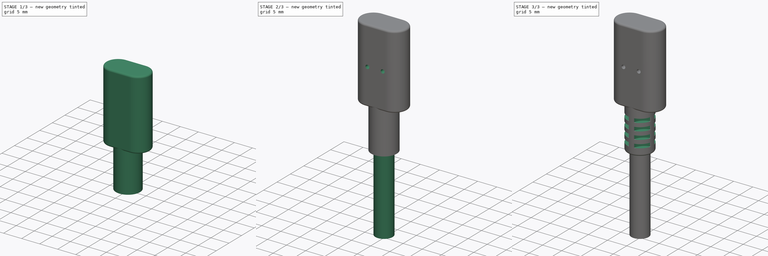
[diagram: build sequence overview — one tinted view per stage of 3, left to right]
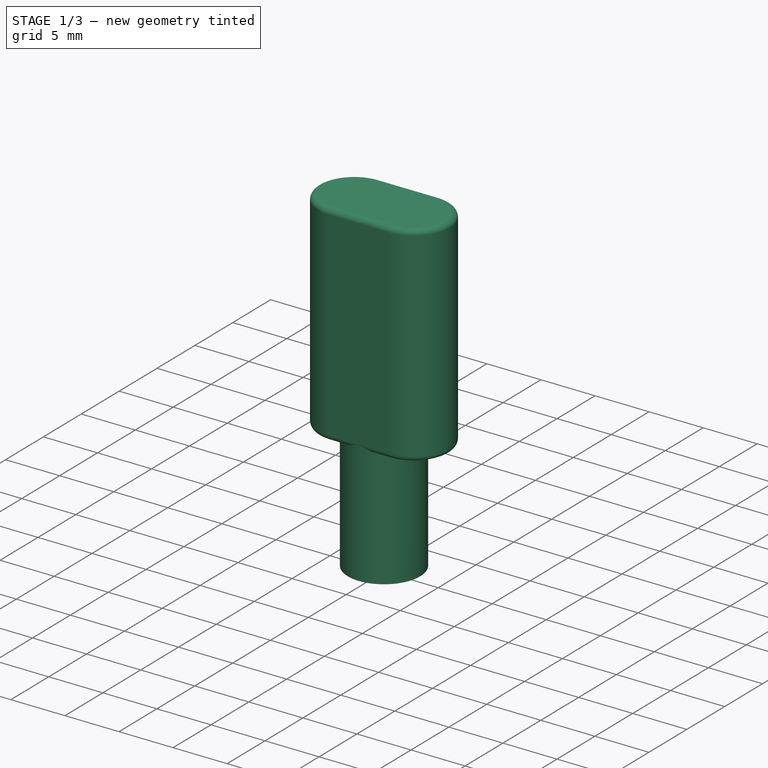
[diagram: stage 1 of 3 — iso view after this stage's code; geometry added in this stage tinted green]
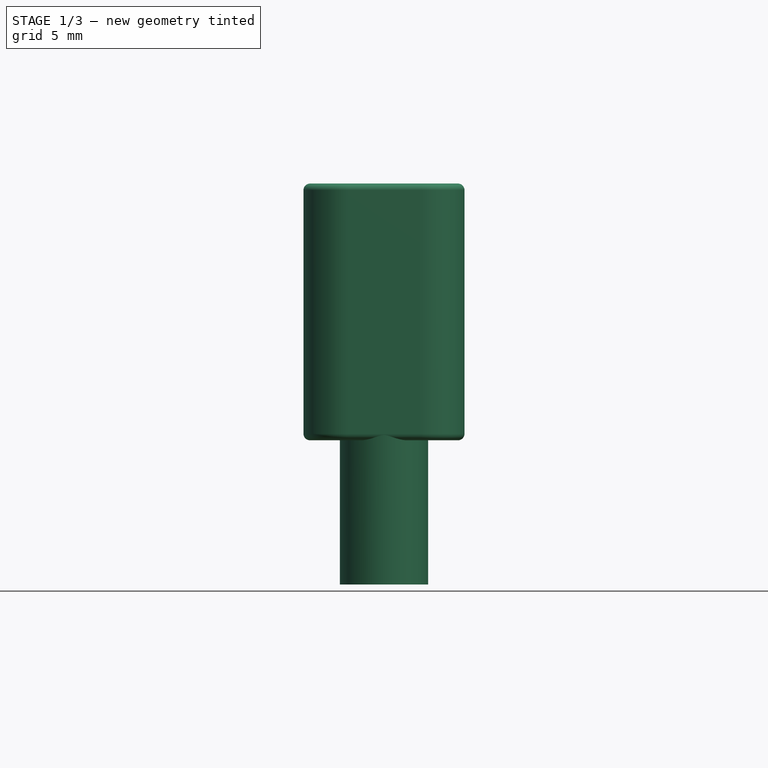
[diagram: stage 1 of 3 — front view after this stage's code; geometry added in this stage tinted green]
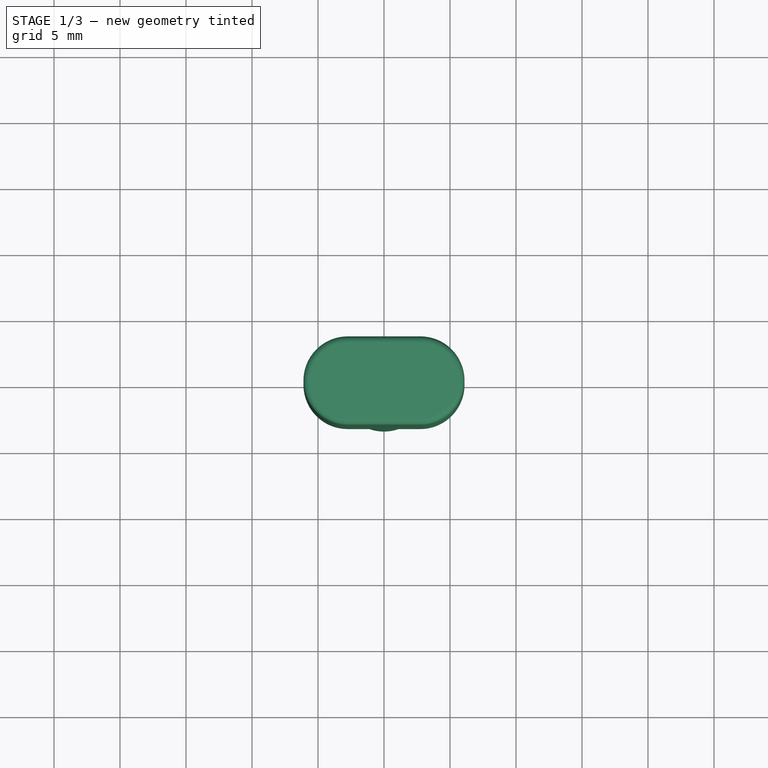
[diagram: stage 1 of 3 — top view after this stage's code; geometry added in this stage tinted green]
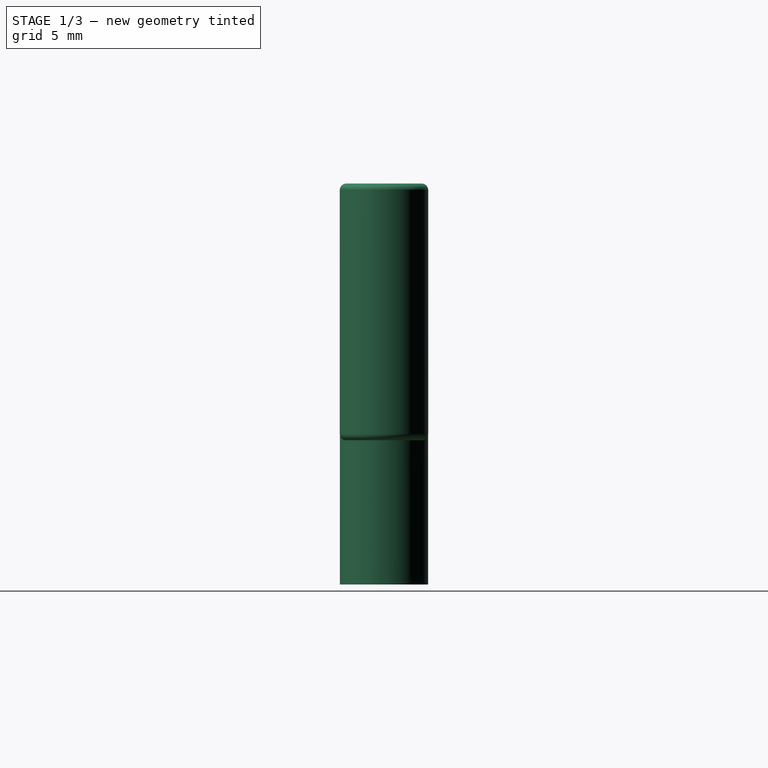
[diagram: stage 1 of 3 — right view after this stage's code; geometry added in this stage tinted green]
FCSTD DOCUMENT  (FreeCAD 0.19R24267 +99 (Git))
Label: USB_C_Connector_Wuerth
License: Creative Commons Attribution-NonCommercial-ShareAlike
LicenseURL: http://creativecommons.org/licenses/by-nc-sa/4.0/
objects: Part::Feature×33, App::Part×5, Sketcher::SketchObject×5, PartDesign::Plane×3, PartDesign::Pad×3, PartDesign::Fillet×2, PartDesign::Pocket×2, PartDesign::CoordinateSystem×2, PartDesign::LinearPattern×1, PartDesign::Body×1
note: 59 computed .brp shape members not serialized (recipe doc carries the construction recipe); baked Part::Feature solids carry a one-line shape summary decoded from their .brp

FEATURE [Part::Feature] Part__Feature  label="632712000112_Shelding"
  shape: bbox 8.543 x 3.737 x 11.66 mm, 85 faces (baked)
FEATURE [Part::Feature] Part__Feature001  label="632712000112_Housing1"
  Placement = pos=(1e-15,-3e-15,-0.02) rot=(0,0,1;0rad)
  shape: bbox 8.291 x 3.729 x 11.09 mm, 630 faces (baked)
FEATURE [Part::Feature] Part__Feature002  label="632712000112_Housing2"
  shape: bbox 6.83 x 0.9 x 4.9 mm, 171 faces (baked)
FEATURE [Part::Feature] Part__Feature003  label="632712000112_Pin"
  Placement = pos=(-2.75,-0.26,0) rot=(0,0,1;3.14159rad)
  shape: bbox 0.2209 x 0.7139 x 9.499 mm, 32 faces (baked)
FEATURE [Part::Feature] Part__Feature004  label="632712000112_Pin001"
  Placement = pos=(-2.25,-0.26,-1e-15) rot=(0,0,1;3.14159rad)
  shape: bbox 0.2209 x 0.7139 x 9.499 mm, 32 faces (baked)
FEATURE [Part::Feature] Part__Feature005  label="632712000112_Pin002"
  Placement = pos=(-1.75,-0.26,-1e-15) rot=(0,0,1;3.14159rad)
  shape: bbox 0.2209 x 0.7139 x 9.499 mm, 32 faces (baked)
FEATURE [Part::Feature] Part__Feature006  label="632712000112_Pin003"
  Placement = pos=(-1.25,-0.26,-1e-15) rot=(0,0,1;3.14159rad)
  shape: bbox 0.2209 x 0.7139 x 9.499 mm, 32 faces (baked)
FEATURE [Part::Feature] Part__Feature007  label="632712000112_Pin004"
  Placement = pos=(-0.75,-0.26,-2e-15) rot=(0,0,1;3.14159rad)
  shape: bbox 0.2209 x 0.7139 x 9.499 mm, 32 faces (baked)
FEATURE [Part::Feature] Part__Feature008  label="632712000112_Pin005"
  Placement = pos=(-0.25,-0.26,-2e-15) rot=(0,0,1;3.14159rad)
  shape: bbox 0.2209 x 0.7139 x 9.499 mm, 32 faces (baked)
FEATURE [Part::Feature] Part__Feature009  label="632712000112_Pin006"
  Placement = pos=(0.25,-0.26,-2e-15) rot=(0,0,1;3.14159rad)
  shape: bbox 0.2209 x 0.7139 x 9.499 mm, 32 faces (baked)
FEATURE [Part::Feature] Part__Feature010  label="632712000112_Pin007"
  Placement = pos=(0.75,-0.26,-2e-15) rot=(0,0,1;3.14159rad)
  shape: bbox 0.2209 x 0.7139 x 9.499 mm, 32 faces (baked)
FEATURE [Part::Feature] Part__Feature011  label="632712000112_Pin008"
  Placement = pos=(1.25,-0.26,-3e-15) rot=(0,0,1;3.14159rad)
  shape: bbox 0.2209 x 0.7139 x 9.499 mm, 32 faces (baked)
FEATURE [Part::Feature] Part__Feature012  label="632712000112_Pin009"
  Placement = pos=(1.75,-0.26,-3e-15) rot=(0,0,1;3.14159rad)
  shape: bbox 0.2209 x 0.7139 x 9.499 mm, 32 faces (baked)
FEATURE [Part::Feature] Part__Feature013  label="632712000112_Pin010"
  Placement = pos=(2.25,-0.26,-3e-15) rot=(0,0,1;3.14159rad)
  shape: bbox 0.2209 x 0.7139 x 9.499 mm, 32 faces (baked)
FEATURE [Part::Feature] Part__Feature014  label="632712000112_Pin011"
  Placement = pos=(2.75,-0.26,-4e-15) rot=(0,0,1;3.14159rad)
  shape: bbox 0.2209 x 0.7139 x 9.499 mm, 32 faces (baked)
FEATURE [App::Part] SE_Shelding_Pin  label="SE Shelding Pin"
  Group = -> [Part__Feature002,Part__Feature003,Part__Feature004,Part__Feature005,Part__Feature006,Part__Feature007,Part__Feature008,Part__Feature009,Part__Feature010,Part__Feature011,Part__Feature012,Part__Feature013,Part__Feature014]
  Origin = -> Origin
  Placement = pos=(-8.37e-14,-0.2,-7.98) rot=(0,0,1;0rad)
FEATURE [Part::Feature] Part__Feature015  label="632712000112_Shelding2.asm"
  Placement = pos=(1e-15,-1.03,-5.2) rot=(0,0,1;3.14159rad)
  shape: bbox 6.32 x 1.17 x 9.76 mm, 166 faces (baked)
FEATURE [Part::Feature] Part__Feature016  label="632712000112_Shelding3.asm"
  Placement = pos=(0,-0.2,-7.2289) rot=(0,0,1;0rad)
  shape: bbox 7.6 x 1.69 x 9.87 mm, 88 faces (baked)
FEATURE [Part::Feature] Part__Feature017  label="632712000112_Shelding2.asm001"
  Placement = pos=(0,1.03,-5.2) rot=(0,0,1;0rad)
  shape: bbox 6.32 x 1.17 x 9.76 mm, 166 faces (baked)
FEATURE [Part::Feature] Part__Feature018  label="632712000112_Housing003"
  shape: bbox 6.83 x 0.9 x 4.9 mm, 171 faces (baked)
FEATURE [Part::Feature] Part__Feature019  label="632712000112_Pin012"
  Placement = pos=(-2.75,-0.26,0) rot=(0,0,1;3.14159rad)
  shape: bbox 0.2209 x 0.7139 x 9.499 mm, 32 faces (baked)
FEATURE [Part::Feature] Part__Feature020  label="632712000112_Pin013"
  Placement = pos=(-2.25,-0.26,-1e-15) rot=(0,0,1;3.14159rad)
  shape: bbox 0.2209 x 0.7139 x 9.499 mm, 32 faces (baked)
FEATURE [Part::Feature] Part__Feature021  label="632712000112_Pin014"
  Placement = pos=(-1.75,-0.26,-1e-15) rot=(0,0,1;3.14159rad)
  shape: bbox 0.2209 x 0.7139 x 9.499 mm, 32 faces (baked)
FEATURE [Part::Feature] Part__Feature022  label="632712000112_Pin015"
  Placement = pos=(-1.25,-0.26,-1e-15) rot=(0,0,1;3.14159rad)
  shape: bbox 0.2209 x 0.7139 x 9.499 mm, 32 faces (baked)
FEATURE [Part::Feature] Part__Feature023  label="632712000112_Pin016"
  Placement = pos=(-0.75,-0.26,-2e-15) rot=(0,0,1;3.14159rad)
  shape: bbox 0.2209 x 0.7139 x 9.499 mm, 32 faces (baked)
FEATURE [Part::Feature] Part__Feature024  label="632712000112_Pin017"
  Placement = pos=(-0.25,-0.26,-2e-15) rot=(0,0,1;3.14159rad)
  shape: bbox 0.2209 x 0.7139 x 9.499 mm, 32 faces (baked)
FEATURE [Part::Feature] Part__Feature025  label="632712000112_Pin018"
  Placement = pos=(0.25,-0.26,-2e-15) rot=(0,0,1;3.14159rad)
  shape: bbox 0.2209 x 0.7139 x 9.499 mm, 32 faces (baked)
FEATURE [Part::Feature] Part__Feature026  label="632712000112_Pin019"
  Placement = pos=(0.75,-0.26,-2e-15) rot=(0,0,1;3.14159rad)
  shape: bbox 0.2209 x 0.7139 x 9.499 mm, 32 faces (baked)
FEATURE [Part::Feature] Part__Feature027  label="632712000112_Pin020"
  Placement = pos=(1.25,-0.26,-3e-15) rot=(0,0,1;3.14159rad)
  shape: bbox 0.2209 x 0.7139 x 9.499 mm, 32 faces (baked)
FEATURE [Part::Feature] Part__Feature028  label="632712000112_Pin021"
  Placement = pos=(1.75,-0.26,-3e-15) rot=(0,0,1;3.14159rad)
  shape: bbox 0.2209 x 0.7139 x 9.499 mm, 32 faces (baked)
FEATURE [Part::Feature] Part__Feature029  label="632712000112_Pin022"
  Placement = pos=(2.25,-0.26,-3e-15) rot=(0,0,1;3.14159rad)
  shape: bbox 0.2209 x 0.7139 x 9.499 mm, 32 faces (baked)
FEATURE [Part::Feature] Part__Feature030  label="632712000112_Pin023"
  Placement = pos=(2.75,-0.26,-4e-15) rot=(0,0,1;3.14159rad)
  shape: bbox 0.2209 x 0.7139 x 9.499 mm, 32 faces (baked)
FEATURE [App::Part] SE_Shelding_Pin001  label="SE Shelding Pin001"
  Group = -> [Part__Feature018,Part__Feature019,Part__Feature020,Part__Feature021,Part__Feature022,Part__Feature023,Part__Feature024,Part__Feature025,Part__Feature026,Part__Feature027,Part__Feature028,Part__Feature029,Part__Feature030]
  Origin = -> Origin001
  Placement = pos=(-8.04e-14,0.2,-7.98) rot=(0,0,1;3.14159rad)
FEATURE [Part::Feature] Part__Feature031  label="632712000112_Mylar"
  Placement = pos=(0,-0.98,-2.44) rot=(0,0.707107,-0.707107;3.14159rad)
  shape: bbox 5.95 x 0.05 x 1.6 mm, 6 faces (baked)
FEATURE [Part::Feature] Part__Feature032  label="632712000112_Mylar001"
  Placement = pos=(0,0.98,-2.49) rot=(0,0.707107,0.707107;3.14159rad)
  shape: bbox 5.95 x 0.05 x 1.6 mm, 6 faces (baked)
FEATURE [App::Part] _32712000112  label="Plug"
  Group = -> [Part__Feature,Part__Feature001,SE_Shelding_Pin,Part__Feature015,Part__Feature016,Part__Feature017,SE_Shelding_Pin001,Part__Feature031,Part__Feature032]
  Origin = -> Origin002
FEATURE [PartDesign::Plane] DatumPlane
  AttachmentOffset = pos=(0,0,-6.65) rot=(0,0,1;0rad)
  Length = 60
  MapMode = 5
  Placement = pos=(0,0,-6.65) rot=(0,0,1;0rad)
  ResizeMode = 0
  Support = -> [XY_Plane004]
  Width = 60
FEATURE [Sketcher::SketchObject] Sketch
  FullyConstrained = true
  MapMode = 5
  Placement = pos=(0,0,-6.65) rot=(0,0,1;0rad)
  Support = -> [DatumPlane]
  sketch-geometry (6):
    g0: ArcOfCircle CenterX=-2.75 CenterY=0 CenterZ=0 NormalX=0 NormalY=0 NormalZ=1 AngleXU=0 Radius=3.35 StartAngle=1.5708 EndAngle=4.71239
    g1: ArcOfCircle CenterX=2.75 CenterY=0 CenterZ=0 NormalX=0 NormalY=0 NormalZ=1 AngleXU=0 Radius=3.35 StartAngle=4.71239 EndAngle=7.85398
    g2: LineSegment StartX=-2.75 StartY=-3.35 StartZ=0 EndX=2.75 EndY=-3.35 EndZ=0
    g3: LineSegment StartX=-2.75 StartY=3.35 StartZ=0 EndX=2.75 EndY=3.35 EndZ=0
    g4: GeomPoint X=-6.1 Y=0 Z=0
    g5: GeomPoint X=6.1 Y=0 Z=0
  constraints (13):
    c: Tangent(g0,g3) = 1.5708
    c: Tangent(g0,g2) = -1.5708
    c: Tangent(g2,g1) = -1.5708
    c: Tangent(g3,g1) = 1.5708
    c: Horizontal(g2)
    c: PointOnObject(g0,g-1)
    c: DistanceY(g0,g0) = 6.7
    c: PointOnObject(g4,g0)
    c: PointOnObject(g5,g1)
    c: PointOnObject(g5,g-1)
    c: PointOnObject(g4,g-1)
    c: DistanceX(g4,g5) = 12.2
    c: Symmetric(g0,g1,g-2)
FEATURE [PartDesign::Pad] Pad
  Direction = (1,1,1)
  Length = 19.45
  Length2 = 100
  Placement = pos=(0,0,-6.65) rot=(0,0,1;0rad)
  Profile = -> Sketch
  Refine = true
  Reversed = true
  Type = 0
FEATURE [PartDesign::Fillet] Fillet
  Base = -> Pad [Edge10,Edge9]
  BaseFeature = -> Pad
  Placement = pos=(0,0,-6.65) rot=(0,0,1;0rad)
  Radius = 0.5
  Refine = true
  SupportTransform = false
FEATURE [PartDesign::Plane] DatumPlane001
  AttachmentOffset = pos=(0,0,-19.45) rot=(0,0,1;0rad)
  Length = 60
  MapMode = 5
  Placement = pos=(0,0,-26.1) rot=(0,0,1;0rad)
  ResizeMode = 0
  Support = -> [DatumPlane]
  Width = 60
FEATURE [Sketcher::SketchObject] Sketch001
  AttachmentOffset = pos=(0,0,2) rot=(0,0,1;0rad)
  FullyConstrained = true
  MapMode = 5
  Placement = pos=(0,0,-24.1) rot=(0,0,1;0rad)
  Support = -> [DatumPlane001]
  sketch-geometry (1):
    g0: Circle CenterX=0 CenterY=0 CenterZ=0 NormalX=0 NormalY=0 NormalZ=1 AngleXU=0 Radius=3.34
  constraints (2):
    c: Coincident(g0,g-1)
    c: Radius(g0) = 3.34
FEATURE [PartDesign::Plane] DatumPlane002
  AttachmentOffset = pos=(0,0,-30.37) rot=(0,0,1;0rad)
  Length = 60
  MapMode = 5
  Placement = pos=(0,0,-37.02) rot=(0,0,1;0rad)
  ResizeMode = 0
  Support = -> [DatumPlane]
  Width = 60
FEATURE [PartDesign::Pad] Pad001
  BaseFeature = -> Fillet
  Direction = (1,1,1)
  Length = 10
  Length2 = 100
  Placement = pos=(0,0,-6.65) rot=(0,0,1;0rad)
  Profile = -> Sketch001
  Refine = true
  Type = 3
  UpToFace = -> DatumPlane002
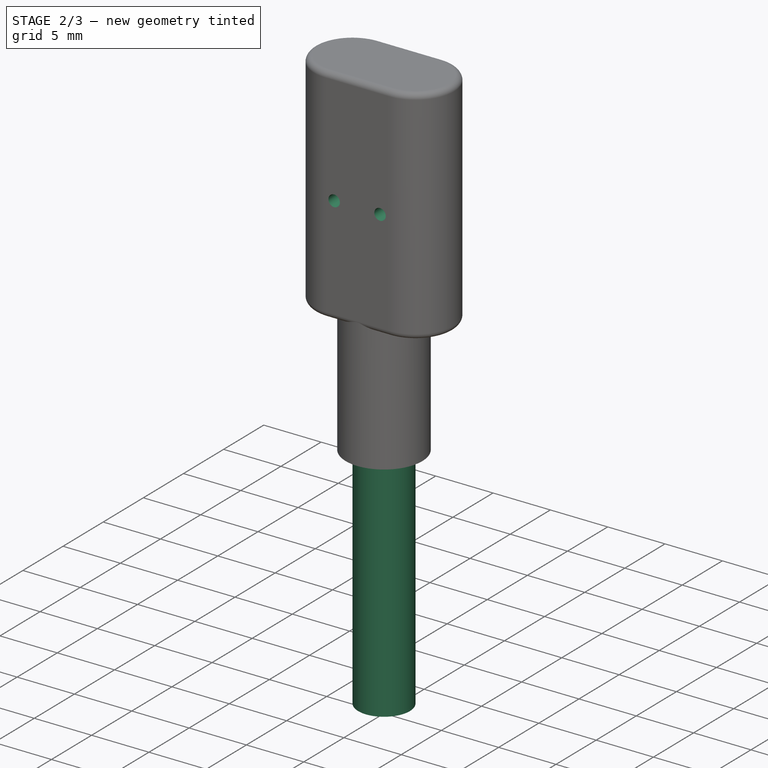
[diagram: stage 2 of 3 — iso view after this stage's code; geometry added in this stage tinted green]
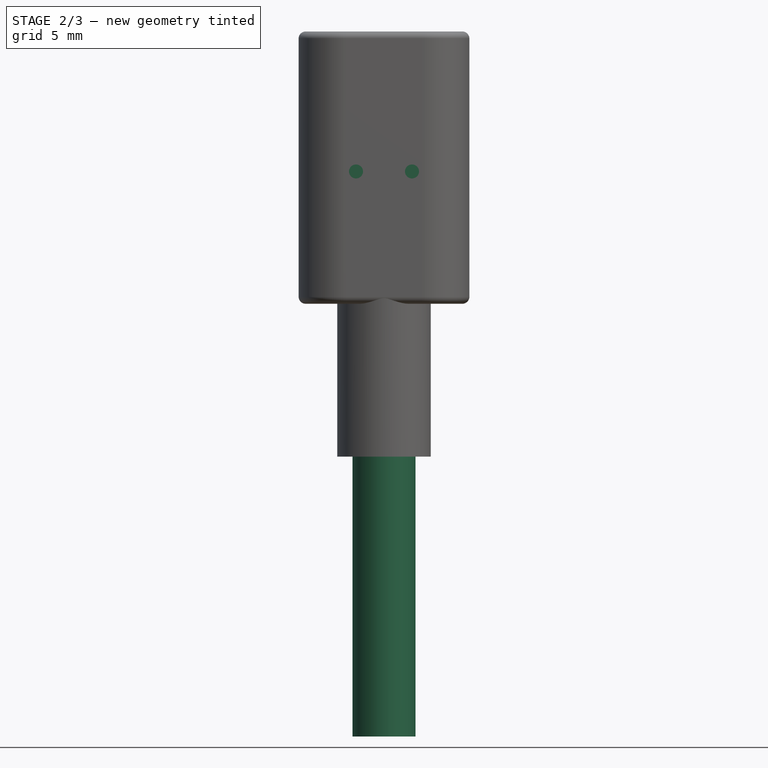
[diagram: stage 2 of 3 — front view after this stage's code; geometry added in this stage tinted green]
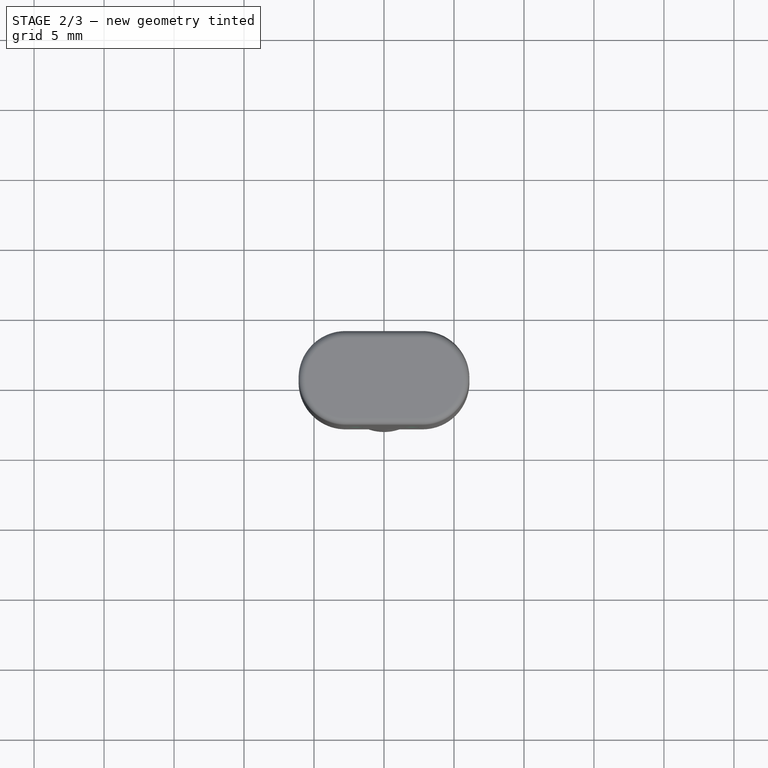
[diagram: stage 2 of 3 — top view after this stage's code; geometry added in this stage tinted green]
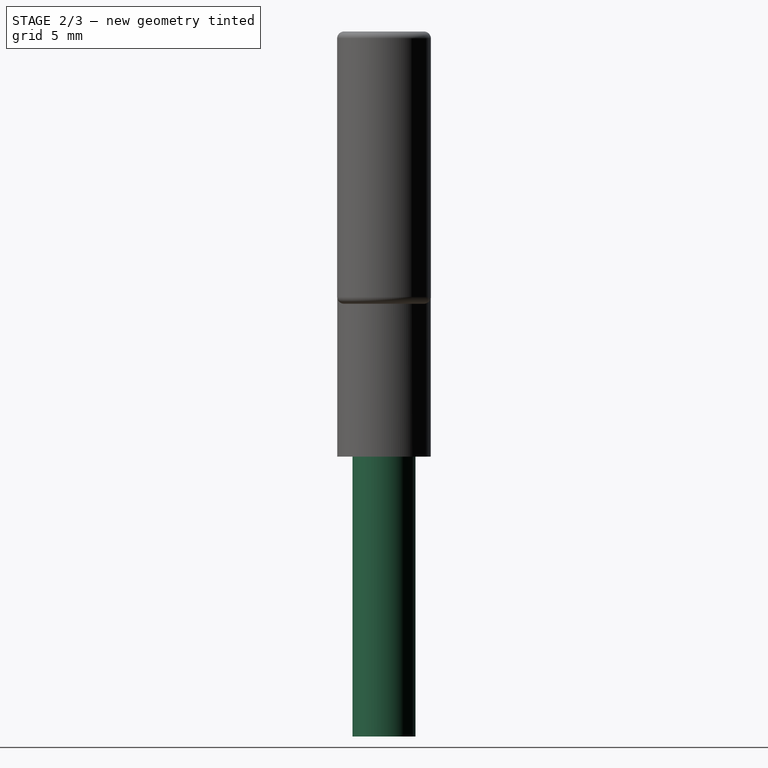
[diagram: stage 2 of 3 — right view after this stage's code; geometry added in this stage tinted green]
FEATURE [Sketcher::SketchObject] Sketch002
  FullyConstrained = true
  MapMode = 5
  Placement = pos=(0,0,-37.02) rot=(0,0,1;0rad)
  Support = -> [DatumPlane002]
  sketch-geometry (1):
    g0: Circle CenterX=0 CenterY=0 CenterZ=0 NormalX=0 NormalY=0 NormalZ=1 AngleXU=0 Radius=2.25
  constraints (2):
    c: Coincident(g0,g-1)
    c: Radius(g0) = 2.25
FEATURE [PartDesign::Pad] Pad002
  BaseFeature = -> Pad001
  Direction = (1,1,1)
  Length = 20
  Length2 = 100
  Placement = pos=(0,0,-6.65) rot=(0,0,1;0rad)
  Profile = -> Sketch002
  Refine = true
  Reversed = true
  Type = 0
FEATURE [Sketcher::SketchObject] Sketch003
  FullyConstrained = true
  MapMode = 5
  Placement = pos=(0,-3.35,-6.65) rot=(1,0,0;1.5708rad)
  Support = -> [Pad002]
  sketch-geometry (2):
    g0: Circle CenterX=2 CenterY=-10 CenterZ=0 NormalX=0 NormalY=0 NormalZ=1 AngleXU=0 Radius=0.5
    g1: Circle CenterX=-2 CenterY=-10 CenterZ=0 NormalX=0 NormalY=0 NormalZ=1 AngleXU=0 Radius=0.5
  constraints (5):
    c: Symmetric(g1,g0,g-2)
    c: Equal(g1,g0)
    c: Radius(g0) = 0.5
    c: DistanceY(g-1,g0) = -10
    c: DistanceX(g1,g0) = 4
FEATURE [PartDesign::Pocket] Pocket
  BaseFeature = -> Pad002
  Length = 3
  Length2 = 100
  Placement = pos=(0,0,-6.65) rot=(0,0,1;0rad)
  Profile = -> Sketch003
  Refine = true
  Type = 0
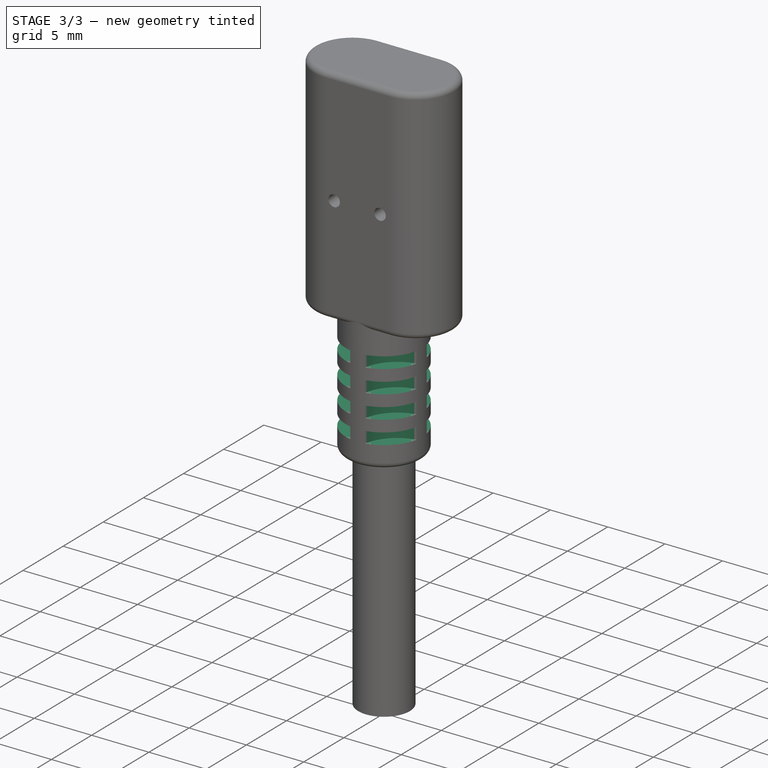
[diagram: stage 3 of 3 — iso view after this stage's code; geometry added in this stage tinted green]
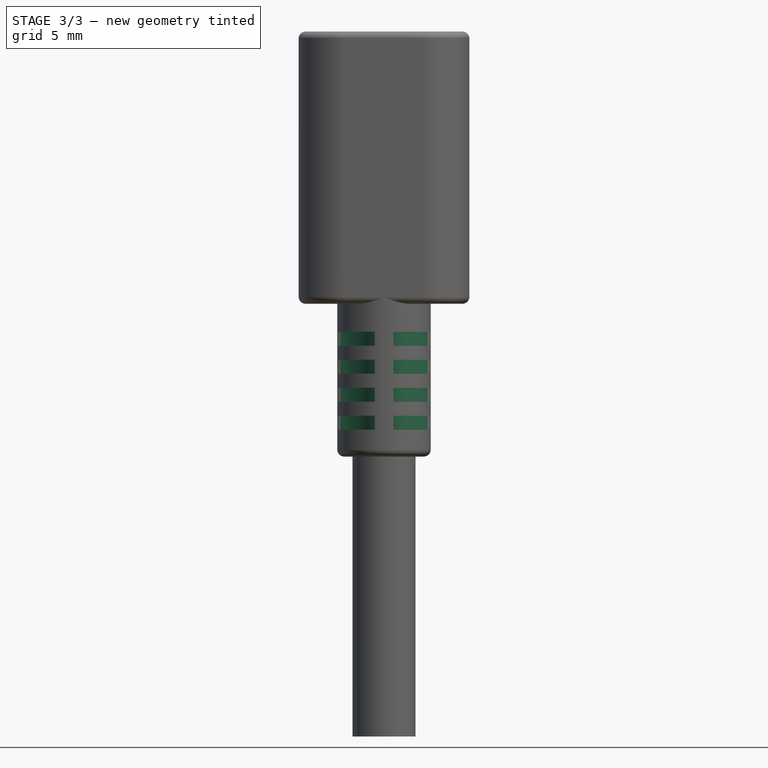
[diagram: stage 3 of 3 — front view after this stage's code; geometry added in this stage tinted green]
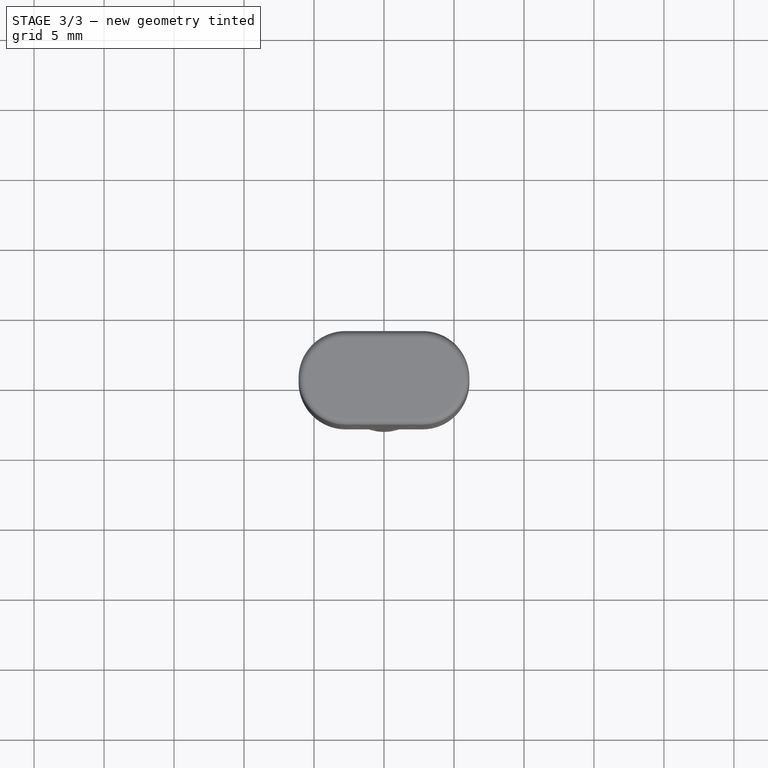
[diagram: stage 3 of 3 — top view after this stage's code; geometry added in this stage tinted green]
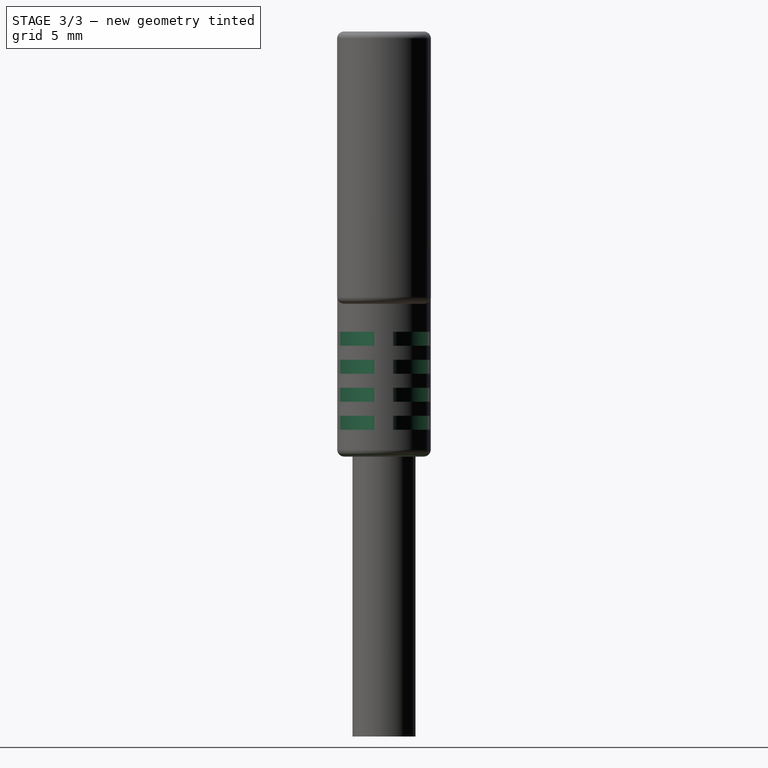
[diagram: stage 3 of 3 — right view after this stage's code; geometry added in this stage tinted green]
FEATURE [PartDesign::Fillet] Fillet001
  Base = -> Pocket [Edge42]
  BaseFeature = -> Pocket
  Placement = pos=(0,0,-6.65) rot=(0,0,1;0rad)
  Radius = 0.5
  Refine = true
  SupportTransform = false
FEATURE [Sketcher::SketchObject] Sketch004
  AttachmentOffset = pos=(0,0,-2) rot=(0,0,1;0rad)
  FullyConstrained = true
  MapMode = 5
  Placement = pos=(0,0,-28.1) rot=(0,0,1;0rad)
  Support = -> [DatumPlane001]
  sketch-geometry (5):
    g0: Circle CenterX=3.88909 CenterY=3.88909 CenterZ=0 NormalX=0 NormalY=0 NormalZ=1 AngleXU=0 Radius=3.3
    g1: LineSegment StartX=0 StartY=0 StartZ=0 EndX=3.88909 EndY=3.88909 EndZ=0
    g2: Circle CenterX=3.88909 CenterY=-3.88909 CenterZ=0 NormalX=0 NormalY=0 NormalZ=1 AngleXU=0 Radius=3.3
    g3: Circle CenterX=-3.88909 CenterY=-3.88909 CenterZ=0 NormalX=0 NormalY=0 NormalZ=1 AngleXU=0 Radius=3.3
    g4: Circle CenterX=-3.88909 CenterY=3.88909 CenterZ=0 NormalX=0 NormalY=0 NormalZ=1 AngleXU=0 Radius=3.3
  constraints (11):
    c: Radius(g0) = 3.3
    c: Coincident(g1,g-1)
    c: Coincident(g1,g0)
    c: Angle(g-1,g1) = 0.785398
    c: Distance(g1) = 5.5
    c: Equal(g0,g4)
    c: Equal(g4,g3)
    c: Equal(g3,g2)
    c: Symmetric(g3,g0,g-1)
    c: Symmetric(g0,g2,g-1)
    c: Symmetric(g4,g0,g-2)
FEATURE [PartDesign::Pocket] Pocket001
  BaseFeature = -> Fillet001
  Length = 1
  Length2 = 100
  Placement = pos=(0,0,-6.65) rot=(0,0,1;0rad)
  Profile = -> Sketch004
  Refine = true
  Type = 0
FEATURE [PartDesign::LinearPattern] LinearPattern
  BaseFeature = -> Pocket001
  Direction = -> Z_Axis004
  Length = 6
  Occurrences = 4
  Originals = -> [Pocket001]
  Placement = pos=(0,0,-6.65) rot=(0,0,1;0rad)
  Refine = true
  Reversed = true
FEATURE [PartDesign::Body] Body
  Group = -> [DatumPlane,DatumPlane001,Sketch,Pad,Fillet,Sketch001,DatumPlane002,Pad001,Sketch002,Pad002,Sketch003,Pocket,Fillet001,Sketch004,Pocket001,LinearPattern]
  Origin = -> Origin004
  Tip = -> LinearPattern
FEATURE [App::Part] Part  label="Cable"
  Group = -> [Body]
  Origin = -> Origin003
FEATURE [PartDesign::CoordinateSystem] LCS_0
  AttacherType = Attacher::AttachEngine3D
  MapMode = 2
  Support = -> [X_Axis005]
FEATURE [PartDesign::CoordinateSystem] LCS_USB_C_CenterCase
  AttacherType = Attacher::AttachEngine3D
  AttachmentOffset = pos=(0,0,4) rot=(0,0,1;0rad)
  MapMode = 5
  Placement = pos=(0,0,-4) rot=(0,1,0;3.14159rad)
  Support = -> [XY_Plane005]
FEATURE [App::Part] USB_C_Connector
  Group = -> [LCS_0,Part,_32712000112,LCS_USB_C_CenterCase]
  Origin = -> Origin005
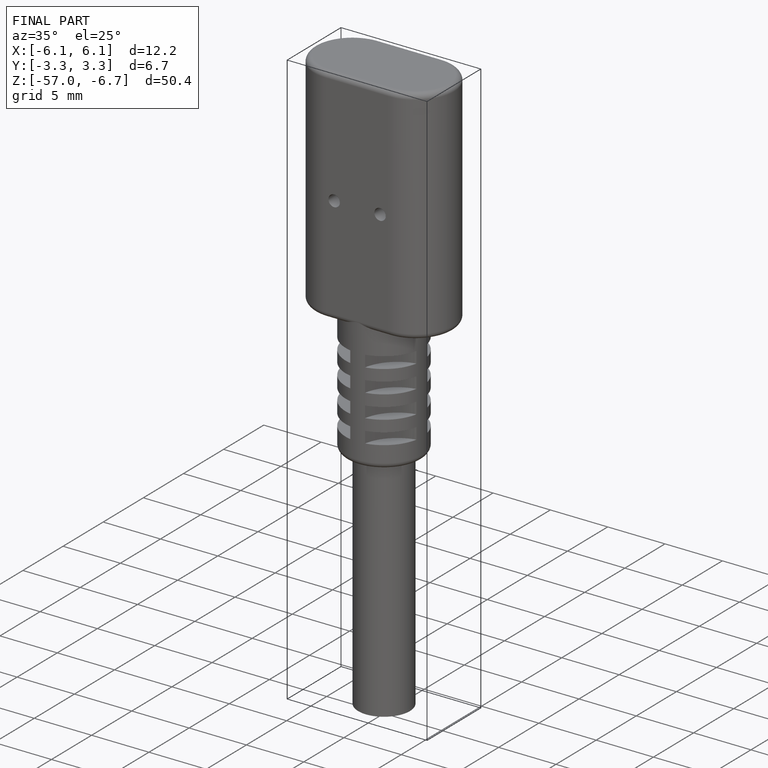
[diagram: finished part — iso view with bounding-box wireframe]
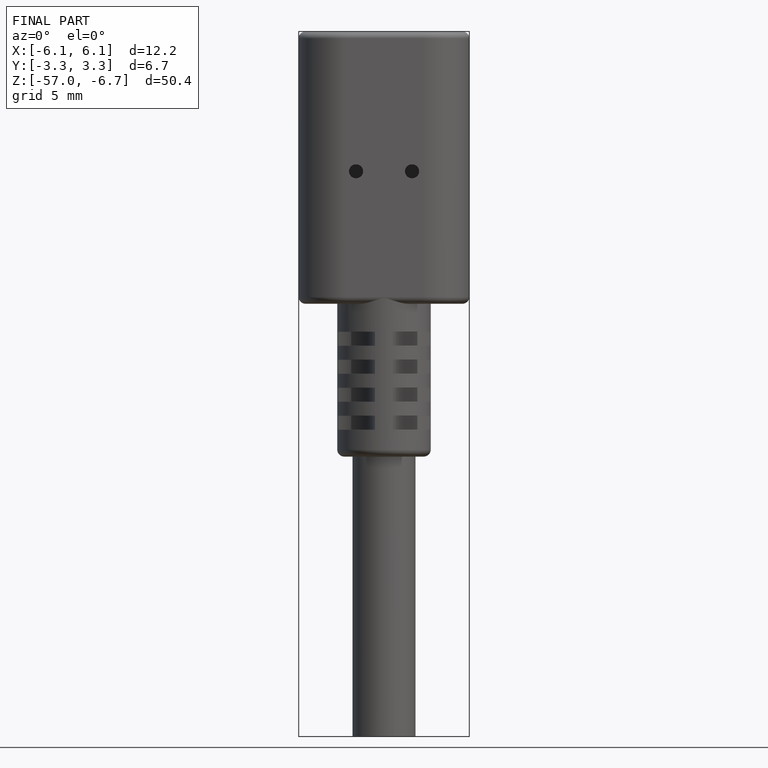
[diagram: finished part — front view with bounding-box wireframe]
